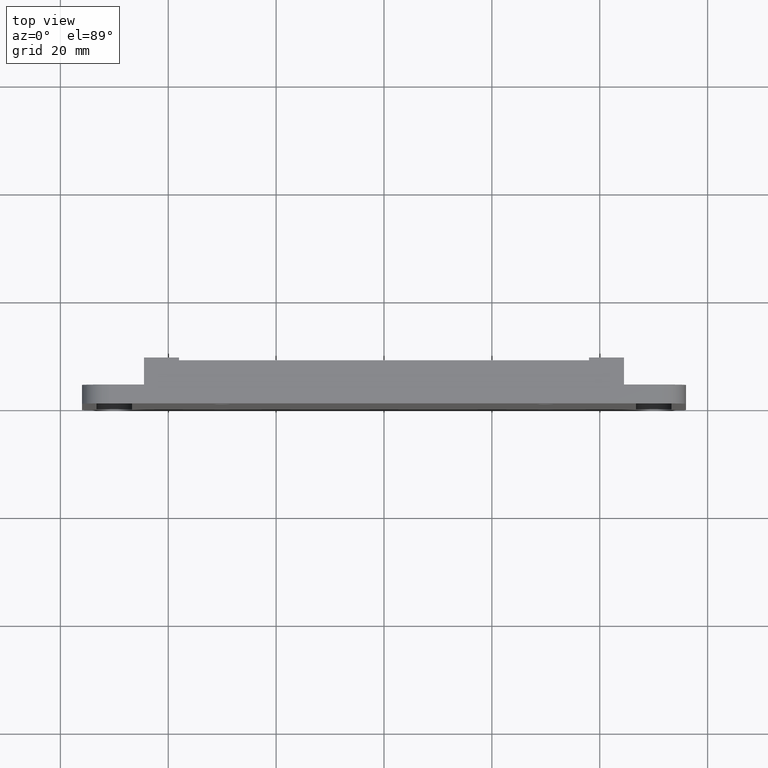
[diagram: clean part render]
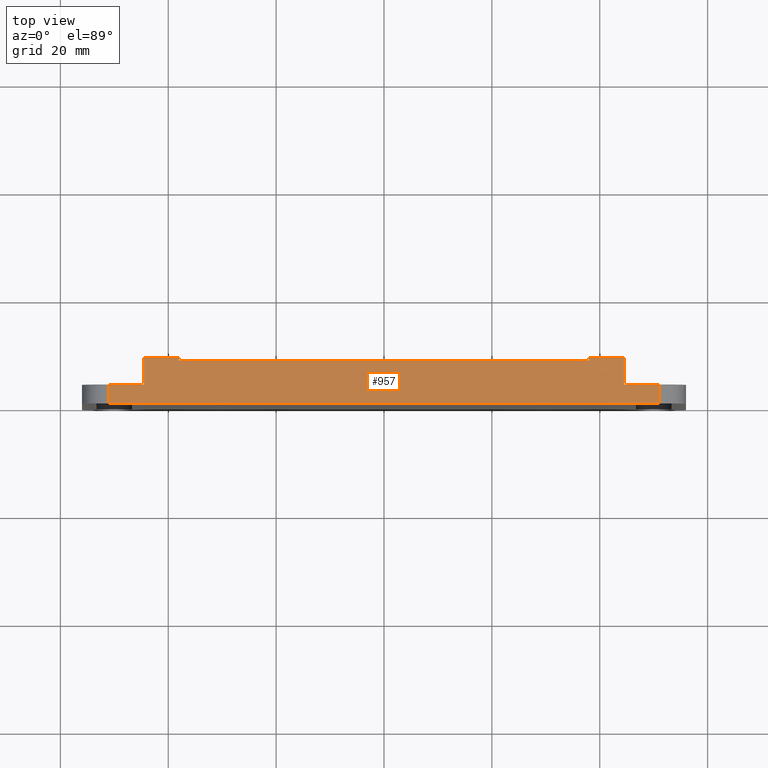
[diagram: same view with one face highlighted and labeled with its STEP entity id]
A machine part, top view. The second image highlights one B-rep face of the part: STEP entity #957.
In plain terms, the highlighted planar face has unit normal (-0, 0, 1).
Its self-contained STEP definition (entity closure, byte-faithful):
#1 = CARTESIAN_POINT ( 'NONE',  ( -44.50000000000000000, 8.500000000000023093, 38.00000000000000000 ) ) ;
#5 = VECTOR ( 'NONE', #423, 1000.000000000000000 ) ;
#9 = VECTOR ( 'NONE', #736, 1000.000000000000000 ) ;
#19 = CARTESIAN_POINT ( 'NONE',  ( 38.00000000000000711, 8.000000000000001776, 38.00000000000000000 ) ) ;
#23 = AXIS2_PLACEMENT_3D ( 'NONE', #904, #338, #410 ) ;
#24 = CARTESIAN_POINT ( 'NONE',  ( 38.00000000000000000, 10.00000000000000000, 38.00000000000000000 ) ) ;
#54 = VERTEX_POINT ( 'NONE', #620 ) ;
#75 = DIRECTION ( 'NONE',  ( 0.000000000000000000, -1.000000000000000000, 0.000000000000000000 ) ) ;
#84 = FACE_OUTER_BOUND ( 'NONE', #240, .T. ) ;
#93 = LINE ( 'NONE', #502, #196 ) ;
#98 = EDGE_CURVE ( 'NONE', #221, #223, #977, .T. ) ;
#99 = LINE ( 'NONE', #19, #5 ) ;
#115 = ORIENTED_EDGE ( 'NONE', *, *, #283, .T. ) ;
#139 = EDGE_CURVE ( 'NONE', #427, #939, #994, .T. ) ;
#144 = VECTOR ( 'NONE', #75, 1000.000000000000000 ) ;
#157 = LINE ( 'NONE', #887, #144 ) ;
#182 = CARTESIAN_POINT ( 'NONE',  ( 38.00000000000000000, 8.500000000000000000, 38.00000000000000000 ) ) ;
#183 = VERTEX_POINT ( 'NONE', #1 ) ;
#196 = VECTOR ( 'NONE', #902, 1000.000000000000000 ) ;
#212 = CARTESIAN_POINT ( 'NONE',  ( 51.00000000000000711, 0.000000000000000000, 38.00000000000000000 ) ) ;
#221 = VERTEX_POINT ( 'NONE', #419 ) ;
#223 = VERTEX_POINT ( 'NONE', #761 ) ;
#230 = CARTESIAN_POINT ( 'NONE',  ( -51.00000000000000711, 3.499999999999999112, 38.00000000000000000 ) ) ;
#235 = VECTOR ( 'NONE', #978, 1000.000000000000000 ) ;
#240 = EDGE_LOOP ( 'NONE', ( #1034, #308, #782, #882, #897, #700, #368, #491, #475, #613, #115, #596 ) ) ;
#250 = CARTESIAN_POINT ( 'NONE',  ( -38.00000000000000711, 8.000000000000001776, 38.00000000000000000 ) ) ;
#253 = VECTOR ( 'NONE', #669, 1000.000000000000000 ) ;
#265 = DIRECTION ( 'NONE',  ( -1.000000000000000000, 1.131341397376178325E-16, 0.000000000000000000 ) ) ;
#275 = CARTESIAN_POINT ( 'NONE',  ( -51.00000000000000711, 0.000000000000000000, 38.00000000000000000 ) ) ;
#283 = EDGE_CURVE ( 'NONE', #339, #221, #293, .T. ) ;
#287 = VECTOR ( 'NONE', #712, 1000.000000000000000 ) ;
#293 = LINE ( 'NONE', #857, #928 ) ;
#308 = ORIENTED_EDGE ( 'NONE', *, *, #763, .F. ) ;
#329 = DIRECTION ( 'NONE',  ( 1.000000000000000000, -2.668805347656626678E-16, 0.000000000000000000 ) ) ;
#332 = LINE ( 'NONE', #645, #235 ) ;
#338 = DIRECTION ( 'NONE',  ( -0.000000000000000000, 0.000000000000000000, 1.000000000000000000 ) ) ;
#339 = VERTEX_POINT ( 'NONE', #212 ) ;
#368 = ORIENTED_EDGE ( 'NONE', *, *, #881, .T. ) ;
#381 = VECTOR ( 'NONE', #895, 1000.000000000000000 ) ;
#410 = DIRECTION ( 'NONE',  ( 1.000000000000000000, 0.000000000000000000, 0.000000000000000000 ) ) ;
#419 = CARTESIAN_POINT ( 'NONE',  ( 51.00000000000000711, 3.499999999999999112, 38.00000000000000000 ) ) ;
#423 = DIRECTION ( 'NONE',  ( -1.000000000000000000, 0.000000000000000000, 0.000000000000000000 ) ) ;
#427 = VERTEX_POINT ( 'NONE', #801 ) ;
#458 = VERTEX_POINT ( 'NONE', #954 ) ;
#467 = VERTEX_POINT ( 'NONE', #230 ) ;
#475 = ORIENTED_EDGE ( 'NONE', *, *, #855, .T. ) ;
#491 = ORIENTED_EDGE ( 'NONE', *, *, #929, .T. ) ;
#495 = CARTESIAN_POINT ( 'NONE',  ( -51.00000000000000711, 0.000000000000000000, 38.00000000000000000 ) ) ;
#502 = CARTESIAN_POINT ( 'NONE',  ( 44.50000000000000000, 3.500000000000000000, 38.00000000000000000 ) ) ;
#545 = EDGE_CURVE ( 'NONE', #223, #54, #93, .T. ) ;
#549 = CARTESIAN_POINT ( 'NONE',  ( -56.00000000000000000, 0.000000000000000000, 38.00000000000000000 ) ) ;
#557 = CARTESIAN_POINT ( 'NONE',  ( 56.00000000000000000, 3.499999999999998668, 38.00000000000000000 ) ) ;
#580 = CARTESIAN_POINT ( 'NONE',  ( 38.00000000000000711, 8.000000000000001776, 38.00000000000000000 ) ) ;
#596 = ORIENTED_EDGE ( 'NONE', *, *, #98, .T. ) ;
#611 = VERTEX_POINT ( 'NONE', #659 ) ;
#613 = ORIENTED_EDGE ( 'NONE', *, *, #797, .T. ) ;
#620 = CARTESIAN_POINT ( 'NONE',  ( 44.50000000000000000, 8.499999999999998224, 38.00000000000000000 ) ) ;
#627 = CARTESIAN_POINT ( 'NONE',  ( -44.50000000000000000, 8.500000000000023093, 38.00000000000000000 ) ) ;
#634 = DIRECTION ( 'NONE',  ( 3.469446951953616950E-15, -1.000000000000000000, 0.000000000000000000 ) ) ;
#645 = CARTESIAN_POINT ( 'NONE',  ( -44.50000000000000000, 3.500000000000000000, 38.00000000000000000 ) ) ;
#659 = CARTESIAN_POINT ( 'NONE',  ( 38.00000000000000000, 8.500000000000000000, 38.00000000000000000 ) ) ;
#663 = LINE ( 'NONE', #275, #381 ) ;
#669 = DIRECTION ( 'NONE',  ( 1.000000000000000000, 0.000000000000000000, 0.000000000000000000 ) ) ;
#691 = EDGE_CURVE ( 'NONE', #1026, #427, #99, .T. ) ;
#700 = ORIENTED_EDGE ( 'NONE', *, *, #986, .F. ) ;
#706 = EDGE_CURVE ( 'NONE', #611, #1026, #998, .T. ) ;
#712 = DIRECTION ( 'NONE',  ( 1.000000000000000000, -2.668805347656626678E-16, 0.000000000000000000 ) ) ;
#713 = VECTOR ( 'NONE', #265, 1000.000000000000000 ) ;
#718 = PLANE ( 'NONE',  #23 ) ;
#736 = DIRECTION ( 'NONE',  ( 3.469446951953616950E-15, 1.000000000000000000, 0.000000000000000000 ) ) ;
#761 = CARTESIAN_POINT ( 'NONE',  ( 44.50000000000000000, 3.500000000000000000, 38.00000000000000000 ) ) ;
#763 = EDGE_CURVE ( 'NONE', #611, #54, #1044, .T. ) ;
#776 = DIRECTION ( 'NONE',  ( 0.000000000000000000, 1.000000000000000000, -0.000000000000000000 ) ) ;
#782 = ORIENTED_EDGE ( 'NONE', *, *, #706, .T. ) ;
#797 = EDGE_CURVE ( 'NONE', #1021, #339, #884, .T. ) ;
#801 = CARTESIAN_POINT ( 'NONE',  ( -38.00000000000000711, 8.000000000000001776, 38.00000000000000000 ) ) ;
#855 = EDGE_CURVE ( 'NONE', #467, #1021, #663, .T. ) ;
#857 = CARTESIAN_POINT ( 'NONE',  ( 51.00000000000000711, 3.499999999999998668, 38.00000000000000000 ) ) ;
#881 = EDGE_CURVE ( 'NONE', #183, #458, #157, .T. ) ;
#882 = ORIENTED_EDGE ( 'NONE', *, *, #691, .T. ) ;
#884 = LINE ( 'NONE', #549, #253 ) ;
#887 = CARTESIAN_POINT ( 'NONE',  ( -44.50000000000000000, 9.999999999999998224, 38.00000000000000000 ) ) ;
#892 = VECTOR ( 'NONE', #329, 1000.000000000000000 ) ;
#895 = DIRECTION ( 'NONE',  ( 0.000000000000000000, -1.000000000000000000, 0.000000000000000000 ) ) ;
#897 = ORIENTED_EDGE ( 'NONE', *, *, #139, .T. ) ;
#902 = DIRECTION ( 'NONE',  ( 0.000000000000000000, 1.000000000000000000, 0.000000000000000000 ) ) ;
#904 = CARTESIAN_POINT ( 'NONE',  ( 0.000000000000000000, 0.000000000000000000, 38.00000000000000000 ) ) ;
#928 = VECTOR ( 'NONE', #776, 1000.000000000000000 ) ;
#929 = EDGE_CURVE ( 'NONE', #458, #467, #332, .T. ) ;
#939 = VERTEX_POINT ( 'NONE', #968 ) ;
#954 = CARTESIAN_POINT ( 'NONE',  ( -44.50000000000000000, 3.500000000000000000, 38.00000000000000000 ) ) ;
#957 = ADVANCED_FACE ( 'NONE', ( #84 ), #718, .T. ) ;
#968 = CARTESIAN_POINT ( 'NONE',  ( -38.00000000000000000, 8.500000000000021316, 38.00000000000000000 ) ) ;
#977 = LINE ( 'NONE', #557, #713 ) ;
#978 = DIRECTION ( 'NONE',  ( -1.000000000000000000, -1.131341397376178325E-16, 0.000000000000000000 ) ) ;
#986 = EDGE_CURVE ( 'NONE', #183, #939, #1050, .T. ) ;
#994 = LINE ( 'NONE', #250, #9 ) ;
#998 = LINE ( 'NONE', #24, #1012 ) ;
#1012 = VECTOR ( 'NONE', #634, 1000.000000000000000 ) ;
#1021 = VERTEX_POINT ( 'NONE', #495 ) ;
#1026 = VERTEX_POINT ( 'NONE', #580 ) ;
#1034 = ORIENTED_EDGE ( 'NONE', *, *, #545, .T. ) ;
#1044 = LINE ( 'NONE', #182, #892 ) ;
#1050 = LINE ( 'NONE', #627, #287 ) ;